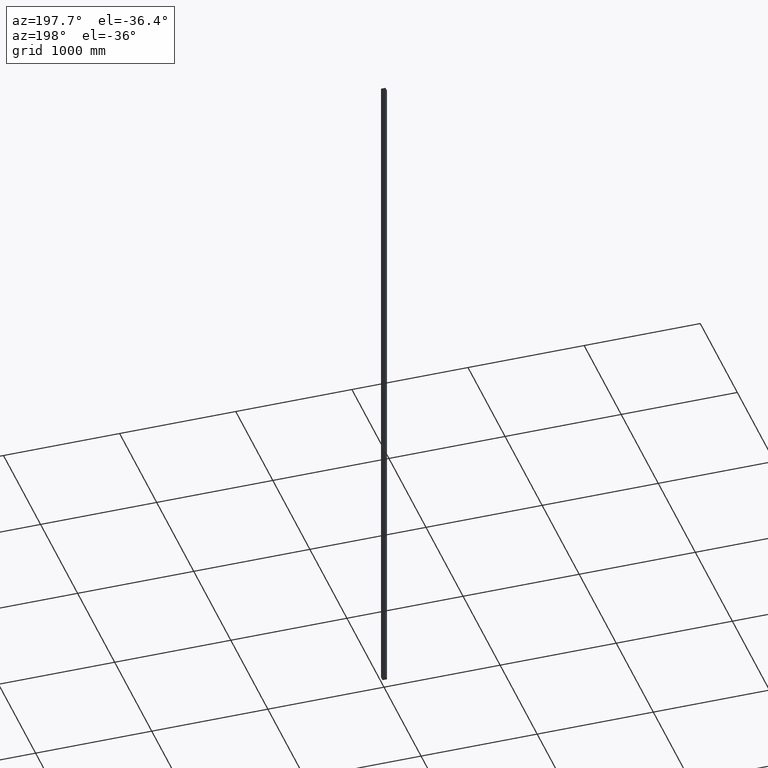
[diagram: clean part render]
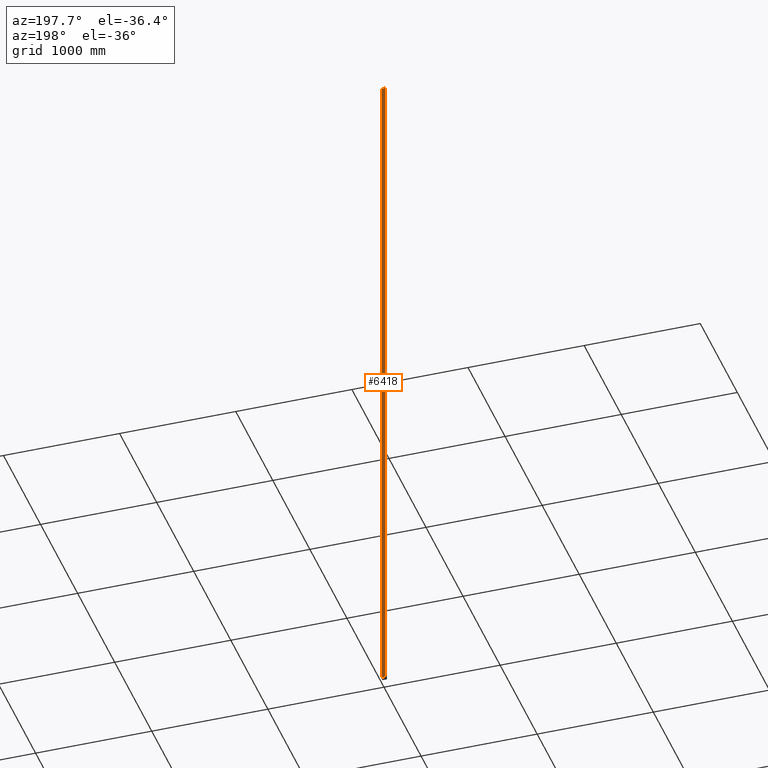
[diagram: same view with one face highlighted and labeled with its STEP entity id]
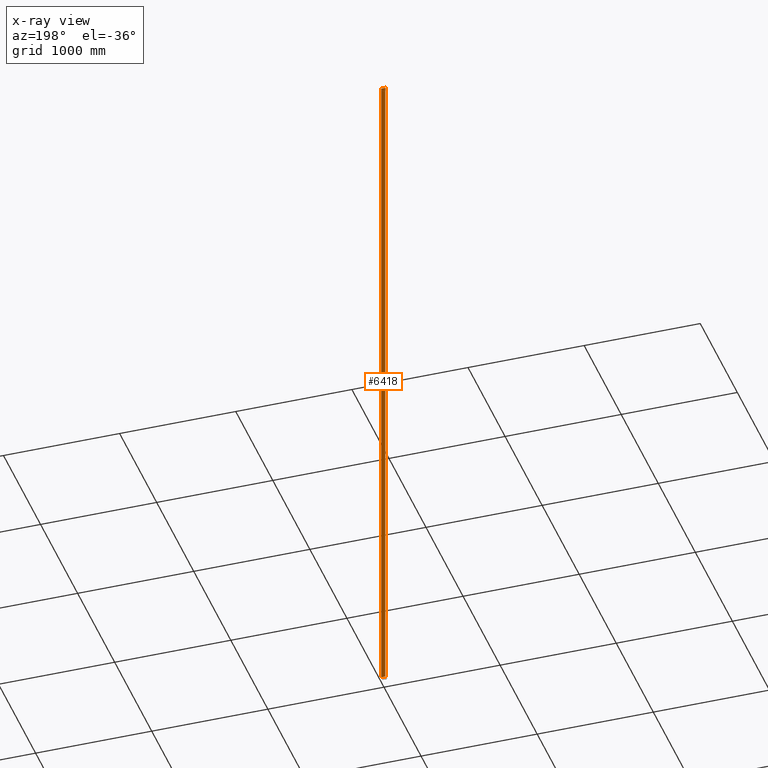
[diagram: x-ray of the same camera — body ghosted, the highlighted face saturated]
A machine part, auxiliary view. The second image highlights one B-rep face of the part: STEP entity #6418.
The next image is the same camera in x-ray: the body ghosted, the highlighted face saturated — about 0% of this face is hidden behind the body in this view.
In plain terms, the highlighted planar face has unit normal (0, -1, 0).
Its self-contained STEP definition (entity closure, byte-faithful):
#434 = VERTEX_POINT ( 'NONE', #6674 ) ;
#1007 = DIRECTION ( 'NONE',  ( 0.000000000000000000, -0.000000000000000000, -1.000000000000000000 ) ) ;
#1093 = EDGE_CURVE ( 'NONE', #2341, #434, #9892, .T. ) ;
#1604 = CARTESIAN_POINT ( 'NONE',  ( 17.00000000000000000, 20.00000000000000000, 3000.000000000000000 ) ) ;
#1950 = LINE ( 'NONE', #7417, #5515 ) ;
#2086 = FACE_OUTER_BOUND ( 'NONE', #4831, .T. ) ;
#2341 = VERTEX_POINT ( 'NONE', #8165 ) ;
#3180 = VECTOR ( 'NONE', #6052, 1000.000000000000000 ) ;
#3660 = EDGE_CURVE ( 'NONE', #12678, #9891, #8145, .T. ) ;
#3790 = LINE ( 'NONE', #11594, #7924 ) ;
#3828 = ORIENTED_EDGE ( 'NONE', *, *, #3660, .F. ) ;
#4045 = ORIENTED_EDGE ( 'NONE', *, *, #1093, .T. ) ;
#4192 = DIRECTION ( 'NONE',  ( -1.000000000000000000, -0.000000000000000000, -0.000000000000000000 ) ) ;
#4809 = EDGE_CURVE ( 'NONE', #434, #9891, #1950, .T. ) ;
#4831 = EDGE_LOOP ( 'NONE', ( #5732, #3828, #8081, #4045 ) ) ;
#5515 = VECTOR ( 'NONE', #4192, 1000.000000000000000 ) ;
#5732 = ORIENTED_EDGE ( 'NONE', *, *, #4809, .T. ) ;
#6052 = DIRECTION ( 'NONE',  ( -0.000000000000000000, -0.000000000000000000, -1.000000000000000000 ) ) ;
#6333 = PLANE ( 'NONE',  #11870 ) ;
#6418 = ADVANCED_FACE ( 'NONE', ( #2086 ), #6333, .F. ) ;
#6674 = CARTESIAN_POINT ( 'NONE',  ( 17.00000000000000000, 20.00000000000000000, -3000.000000000000000 ) ) ;
#7417 = CARTESIAN_POINT ( 'NONE',  ( -16.99999999999999289, 20.00000000000000000, -3000.000000000000000 ) ) ;
#7445 = CARTESIAN_POINT ( 'NONE',  ( -16.99999999999999289, 20.00000000000000000, 3000.000000000000000 ) ) ;
#7629 = CARTESIAN_POINT ( 'NONE',  ( -16.99999999999999289, 20.00000000000000000, 3000.000000000000000 ) ) ;
#7717 = CARTESIAN_POINT ( 'NONE',  ( -16.99999999999999289, 20.00000000000000000, 3000.000000000000000 ) ) ;
#7924 = VECTOR ( 'NONE', #10689, 1000.000000000000000 ) ;
#8081 = ORIENTED_EDGE ( 'NONE', *, *, #12313, .F. ) ;
#8145 = LINE ( 'NONE', #7717, #12413 ) ;
#8165 = CARTESIAN_POINT ( 'NONE',  ( 17.00000000000000000, 20.00000000000000000, 3000.000000000000000 ) ) ;
#9210 = CARTESIAN_POINT ( 'NONE',  ( -16.99999999999999289, 20.00000000000000000, -3000.000000000000000 ) ) ;
#9891 = VERTEX_POINT ( 'NONE', #9210 ) ;
#9892 = LINE ( 'NONE', #1604, #3180 ) ;
#10689 = DIRECTION ( 'NONE',  ( -1.000000000000000000, -0.000000000000000000, -0.000000000000000000 ) ) ;
#10807 = DIRECTION ( 'NONE',  ( 0.000000000000000000, -1.000000000000000000, 0.000000000000000000 ) ) ;
#11594 = CARTESIAN_POINT ( 'NONE',  ( -16.99999999999999289, 20.00000000000000000, 3000.000000000000000 ) ) ;
#11870 = AXIS2_PLACEMENT_3D ( 'NONE', #7629, #10807, #1007 ) ;
#12313 = EDGE_CURVE ( 'NONE', #2341, #12678, #3790, .T. ) ;
#12413 = VECTOR ( 'NONE', #13994, 1000.000000000000000 ) ;
#12678 = VERTEX_POINT ( 'NONE', #7445 ) ;
#13994 = DIRECTION ( 'NONE',  ( -0.000000000000000000, -0.000000000000000000, -1.000000000000000000 ) ) ;